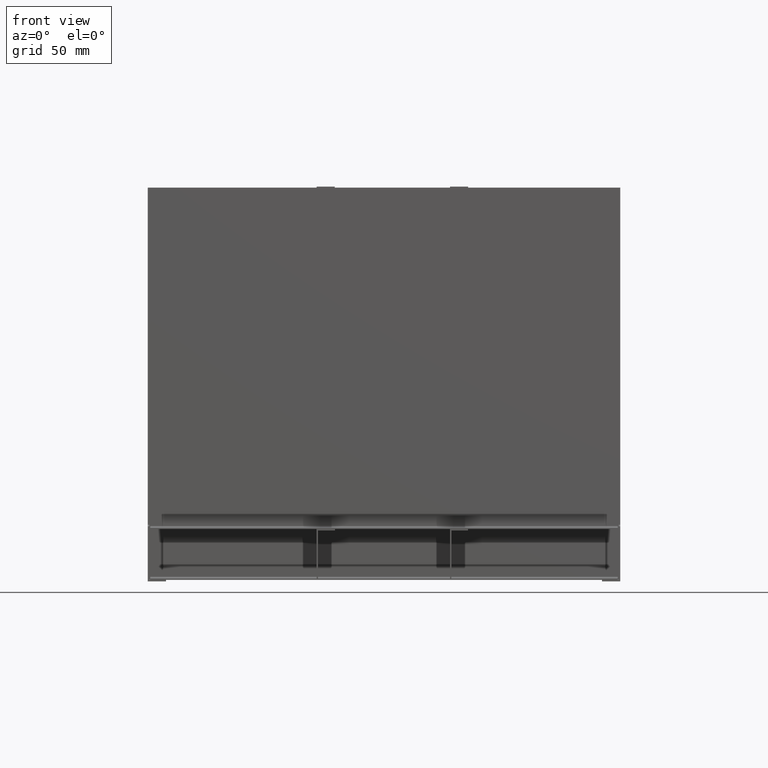
[diagram: clean part render]
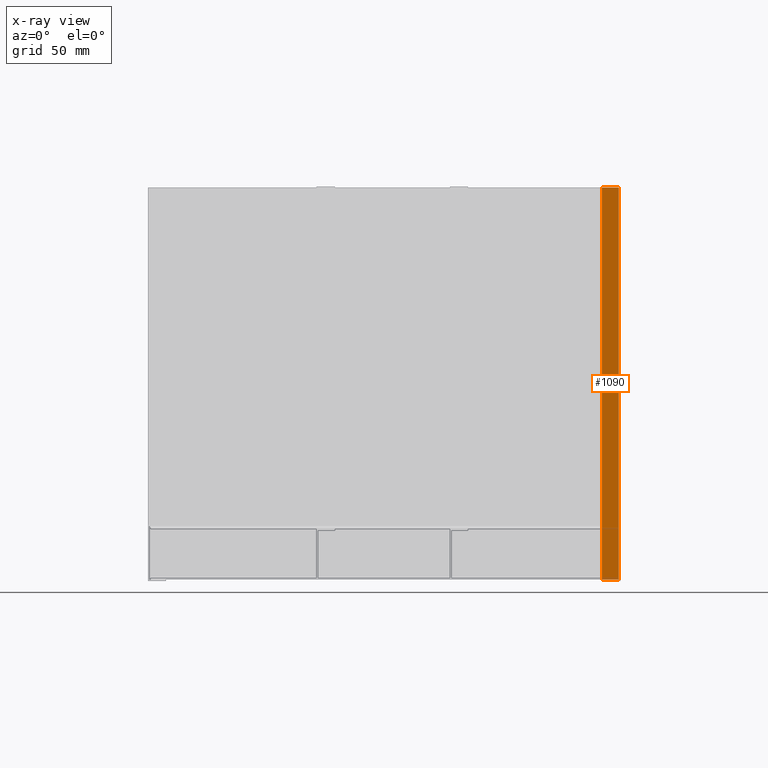
[diagram: x-ray — body ghosted, one internal face saturated and labeled with its STEP entity id]
A machine part, front view, then the same camera in x-ray: the body is ghosted and one INTERNAL B-rep face — a face not visible from any outside direction — is saturated and labeled: STEP entity #1090.
In plain terms, the highlighted planar face has unit normal (0, 1, 0).
Its self-contained STEP definition (entity closure, byte-faithful):
#742=DIRECTION('',(0.E0,1.E0,0.E0));
#743=VECTOR('',#742,8.5E0);
#744=CARTESIAN_POINT('',(1.86E2,7.5E-1,-1.9925E2));
#745=LINE('',#744,#743);
#763=DIRECTION('',(-1.E0,0.E0,0.E0));
#764=VECTOR('',#763,1.99E2);
#765=CARTESIAN_POINT('',(1.86E2,7.5E-1,-1.9925E2));
#766=LINE('',#765,#764);
#770=DIRECTION('',(0.E0,1.E0,0.E0));
#771=VECTOR('',#770,8.5E0);
#772=CARTESIAN_POINT('',(-1.3E1,7.5E-1,-1.9925E2));
#773=LINE('',#772,#771);
#950=DIRECTION('',(-1.E0,0.E0,0.E0));
#951=VECTOR('',#950,1.99E2);
#952=CARTESIAN_POINT('',(1.86E2,9.25E0,-1.9925E2));
#953=LINE('',#952,#951);
#1006=CARTESIAN_POINT('',(-1.3E1,7.5E-1,-1.9925E2));
#1007=VERTEX_POINT('',#1006);
#1008=CARTESIAN_POINT('',(1.86E2,7.5E-1,-1.9925E2));
#1009=VERTEX_POINT('',#1008);
#1014=CARTESIAN_POINT('',(1.86E2,9.25E0,-1.9925E2));
#1015=VERTEX_POINT('',#1014);
#1016=CARTESIAN_POINT('',(-1.3E1,9.25E0,-1.9925E2));
#1017=VERTEX_POINT('',#1016);
#1077=CARTESIAN_POINT('',(1.86E2,9.25E0,-1.9925E2));
#1078=DIRECTION('',(0.E0,0.E0,-1.E0));
#1079=DIRECTION('',(-1.E0,0.E0,0.E0));
#1080=AXIS2_PLACEMENT_3D('',#1077,#1078,#1079);
#1081=PLANE('',#1080);
#1082=ORIENTED_EDGE('',*,*,#1053,.T.);
#1084=ORIENTED_EDGE('',*,*,#1083,.T.);
#1086=ORIENTED_EDGE('',*,*,#1085,.F.);
#1087=ORIENTED_EDGE('',*,*,#1064,.F.);
#1088=EDGE_LOOP('',(#1082,#1084,#1086,#1087));
#1089=FACE_OUTER_BOUND('',#1088,.F.);
#1053=EDGE_CURVE('',#1009,#1007,#766,.T.);
#1064=EDGE_CURVE('',#1009,#1015,#745,.T.);
#1083=EDGE_CURVE('',#1007,#1017,#773,.T.);
#1085=EDGE_CURVE('',#1015,#1017,#953,.T.);
#1090=ADVANCED_FACE('',(#1089),#1081,.F.);